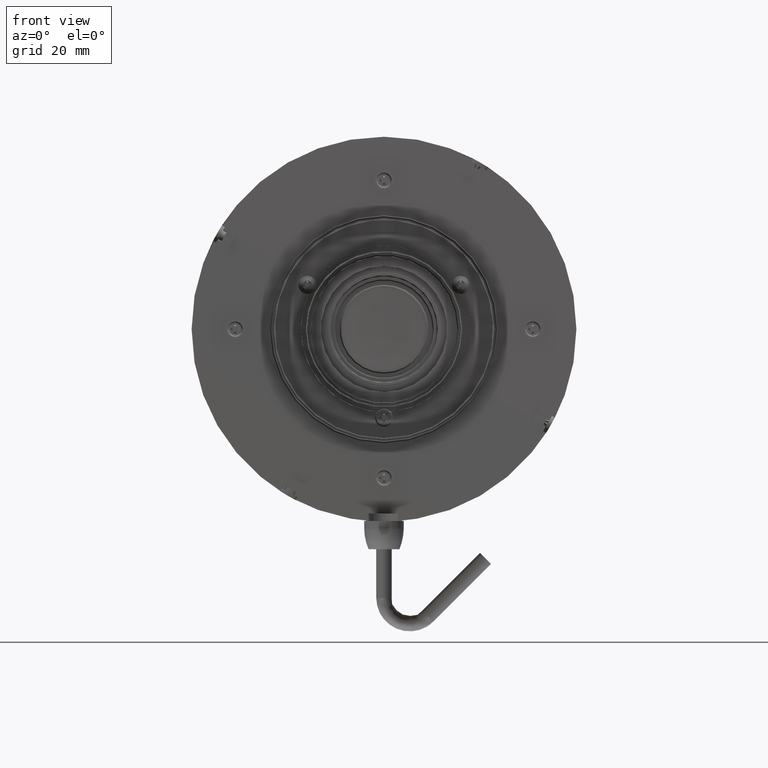
[diagram: clean part render]
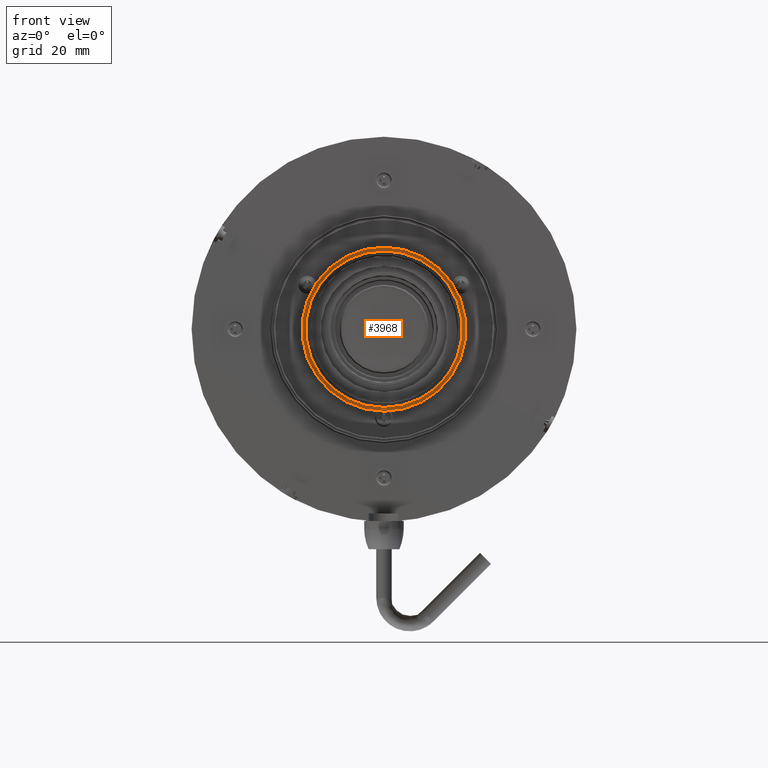
[diagram: same view with one face highlighted and labeled with its STEP entity id]
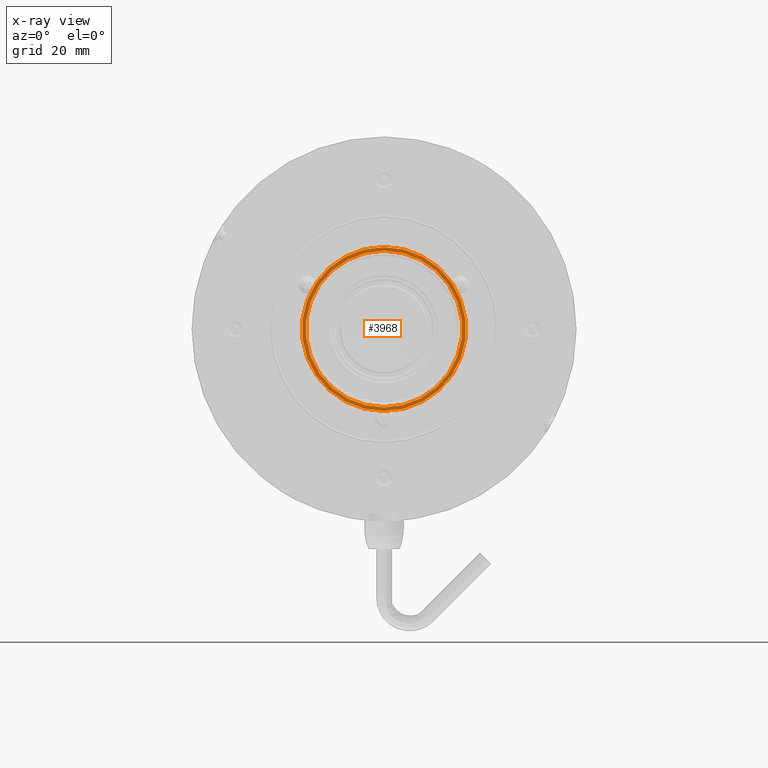
[diagram: x-ray of the same camera — body ghosted, the highlighted face saturated]
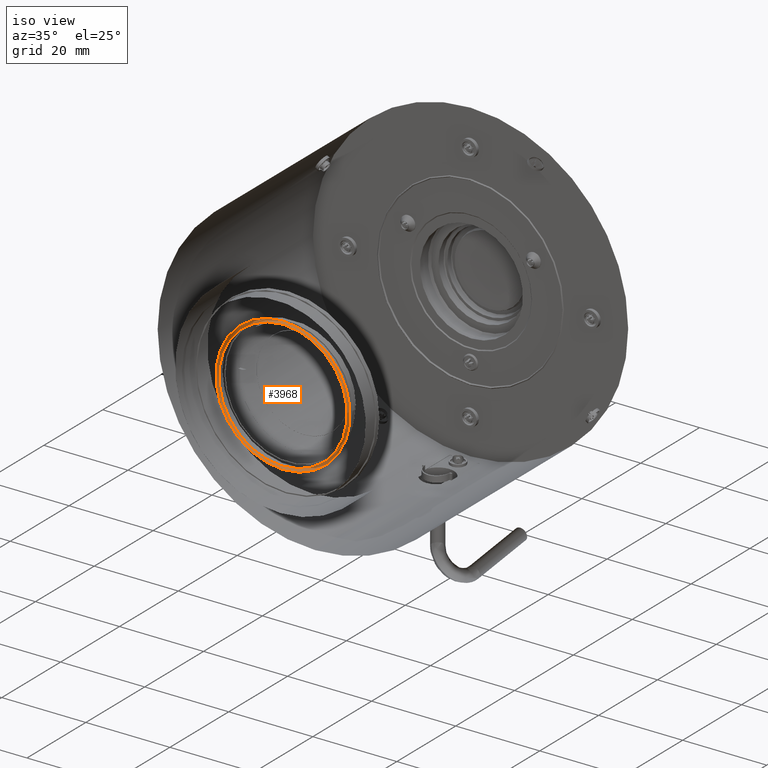
[diagram: same view with one face highlighted and labeled with its STEP entity id]
A machine part, front view. The second image highlights one B-rep face of the part: STEP entity #3968.
The next image is the same camera in x-ray: the body ghosted, the highlighted face saturated — about 0% of this face is hidden behind the body in this view.
A second angle (iso view) of the same face is appended — the face is thin or edge-on in the first view.
In plain terms, the highlighted planar face has unit normal (-0, -1, 0).
Its self-contained STEP definition (entity closure, byte-faithful):
#417 = EDGE_CURVE ( 'NONE', #3812, #3812, #11263, .T. ) ;
#486 = AXIS2_PLACEMENT_3D ( 'NONE', #10908, #4448, #1724 ) ;
#675 = CARTESIAN_POINT ( 'NONE',  ( -4.336808689942017736E-15, -81.54218145097800630, -1.734723475976810250E-15 ) ) ;
#1354 = EDGE_CURVE ( 'NONE', #7742, #7742, #9346, .T. ) ;
#1724 = DIRECTION ( 'NONE',  ( 1.000000000000000000, -6.123031769111889989E-17, 0.000000000000000000 ) ) ;
#1954 = CARTESIAN_POINT ( 'NONE',  ( -3.469446951953614189E-15, -81.54218145097800630, 15.98769907592919814 ) ) ;
#2238 = DIRECTION ( 'NONE',  ( 0.000000000000000000, 1.000000000000000000, 0.000000000000000000 ) ) ;
#2490 = DIRECTION ( 'NONE',  ( 0.000000000000000000, 0.000000000000000000, -1.000000000000000000 ) ) ;
#3529 = FACE_BOUND ( 'NONE', #8084, .T. ) ;
#3553 = AXIS2_PLACEMENT_3D ( 'NONE', #675, #6053, #2490 ) ;
#3812 = VERTEX_POINT ( 'NONE', #1954 ) ;
#3968 = ADVANCED_FACE ( 'NONE', ( #3529, #7274 ), #9211, .T. ) ;
#4448 = DIRECTION ( 'NONE',  ( -6.123031769111889989E-17, -1.000000000000000000, 0.000000000000000000 ) ) ;
#6053 = DIRECTION ( 'NONE',  ( -0.000000000000000000, 1.000000000000000000, -0.000000000000000000 ) ) ;
#6878 = ORIENTED_EDGE ( 'NONE', *, *, #1354, .T. ) ;
#7274 = FACE_OUTER_BOUND ( 'NONE', #7812, .T. ) ;
#7742 = VERTEX_POINT ( 'NONE', #9563 ) ;
#7812 = EDGE_LOOP ( 'NONE', ( #8403 ) ) ;
#8084 = EDGE_LOOP ( 'NONE', ( #6878 ) ) ;
#8403 = ORIENTED_EDGE ( 'NONE', *, *, #417, .F. ) ;
#8458 = DIRECTION ( 'NONE',  ( 0.000000000000000000, 0.000000000000000000, 1.000000000000000000 ) ) ;
#9211 = PLANE ( 'NONE',  #486 ) ;
#9346 = CIRCLE ( 'NONE', #3553, 15.26200000000000045 ) ;
#9426 = CARTESIAN_POINT ( 'NONE',  ( -3.469446951953614189E-15, -81.54218145097800630, -1.734723475976810250E-15 ) ) ;
#9563 = CARTESIAN_POINT ( 'NONE',  ( -4.336808689942017736E-15, -81.54218145097800630, -15.26200000000000223 ) ) ;
#10102 = AXIS2_PLACEMENT_3D ( 'NONE', #9426, #2238, #8458 ) ;
#10908 = CARTESIAN_POINT ( 'NONE',  ( -3.856908821664599857E-15, -81.54218145097800630, 15.26200000000000045 ) ) ;
#11263 = CIRCLE ( 'NONE', #10102, 15.98769907592920170 ) ;